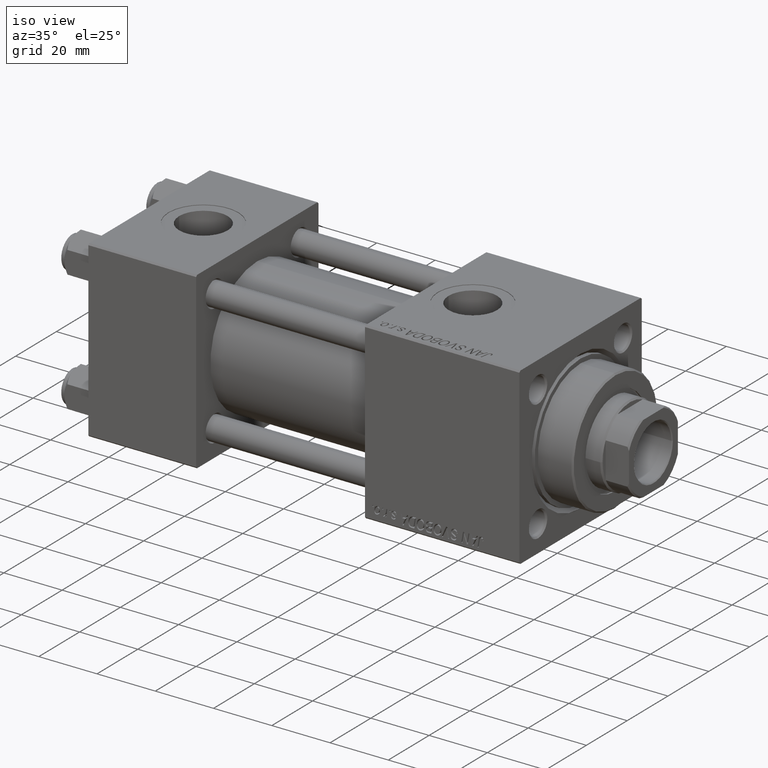
[diagram: clean part render]
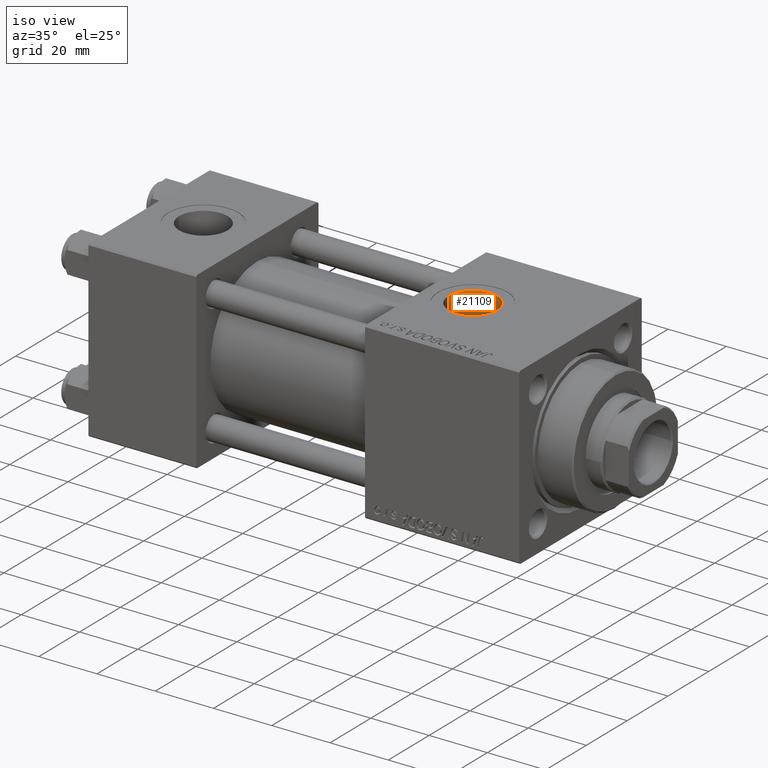
[diagram: same view with one face highlighted and labeled with its STEP entity id]
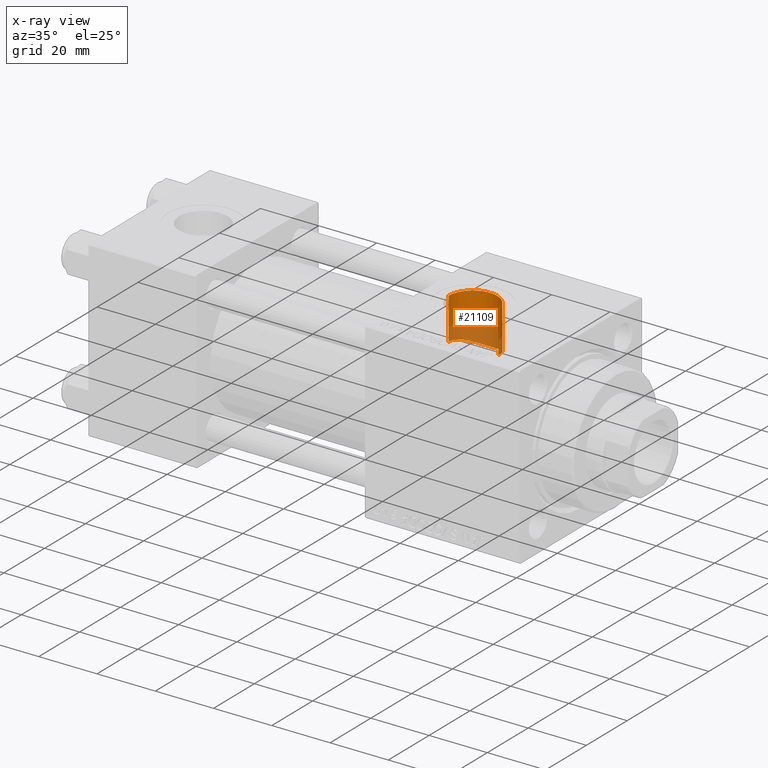
[diagram: x-ray of the same camera — body ghosted, the highlighted face saturated]
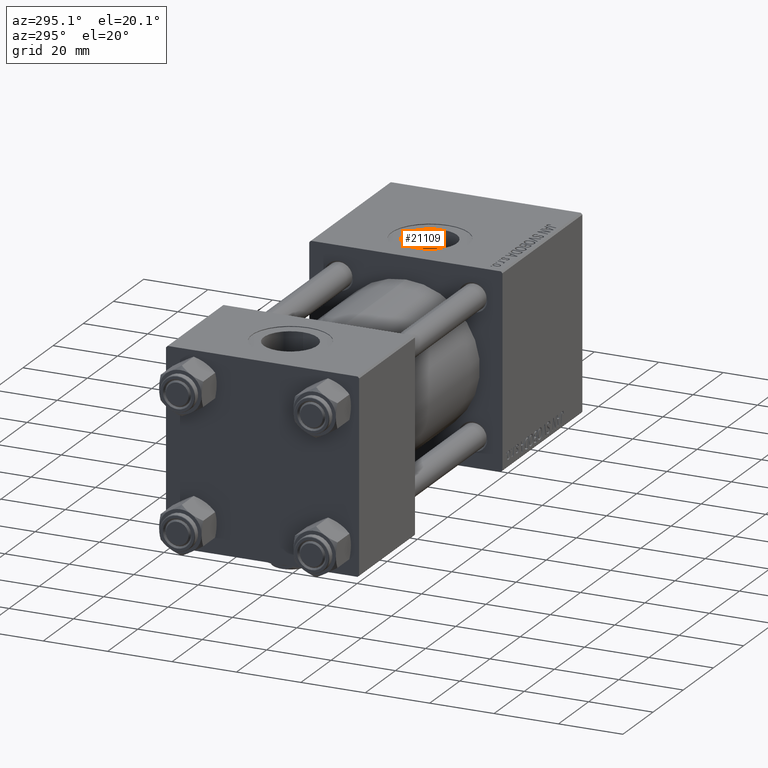
[diagram: same view with one face highlighted and labeled with its STEP entity id]
A machine part, iso view. The second image highlights one B-rep face of the part: STEP entity #21109.
The next image is the same camera in x-ray: the body ghosted, the highlighted face saturated — about 38% of this face is hidden behind the body in this view.
A second angle (auxiliary view) of the same face is appended — the face is thin or edge-on in the first view.
In plain terms, the highlighted cylindrical surface (edge-blend (fillet) strip) has radius 8.33 mm, axis along (0, 0, -1).
Its self-contained STEP definition (entity closure, byte-faithful):
#110 = CARTESIAN_POINT ( 'NONE',  ( 111.0000000000000000, -3.469446951953613794E-15, 52.79999999999999716 ) ) ;
#724 = CARTESIAN_POINT ( 'NONE',  ( 103.0866881673992452, 2.655374492085107896, 15.27912538186901692 ) ) ;
#1174 = EDGE_CURVE ( 'NONE', #15146, #51081, #51486, .T. ) ;
#1497 = CARTESIAN_POINT ( 'NONE',  ( 119.3300000000000125, -2.449316168263869032E-15, 52.79999999999999716 ) ) ;
#1523 = CARTESIAN_POINT ( 'NONE',  ( 116.1213706297519224, 6.590259460215506238, 14.03424939317718945 ) ) ;
#1642 = EDGE_CURVE ( 'NONE', #51081, #8191, #45917, .T. ) ;
#1722 = B_SPLINE_CURVE_WITH_KNOTS ( 'NONE', 3,
 ( #39067, #35874, #52233, #7855 ),
 .UNSPECIFIED., .F., .F.,
 ( 4, 4 ),
 ( 0.000000000000000000, 0.0007063285354565328363 ),
 .UNSPECIFIED. ) ;
#1793 = CARTESIAN_POINT ( 'NONE',  ( 110.3699255016522756, 8.310562936261201017, 13.08375847227048894 ) ) ;
#3381 = AXIS2_PLACEMENT_3D ( 'NONE', #29401, #21465, #4819 ) ;
#4127 = VERTEX_POINT ( 'NONE', #45276 ) ;
#4705 = CARTESIAN_POINT ( 'NONE',  ( 102.7353150131715722, 1.075514947314766045, 15.46498077916762526 ) ) ;
#4819 = DIRECTION ( 'NONE',  ( 1.000000000000000000, 0.000000000000000000, 0.000000000000000000 ) ) ;
#4967 = CARTESIAN_POINT ( 'NONE',  ( 118.8491620312711774, 2.801948762054946140, 15.24674929831635595 ) ) ;
#5083 = VECTOR ( 'NONE', #37458, 1000.000000000000000 ) ;
#5232 = CARTESIAN_POINT ( 'NONE',  ( 104.6351521567280258, 5.399275359235570448, 14.53490046566675176 ) ) ;
#5466 = ORIENTED_EDGE ( 'NONE', *, *, #21217, .F. ) ;
#5494 = CARTESIAN_POINT ( 'NONE',  ( 107.3002806938656590, 7.468012193495477291, 13.58288275005221379 ) ) ;
#5569 = CARTESIAN_POINT ( 'NONE',  ( 119.3300000000000125, -2.449316168263869821E-15, 29.79999999999999716 ) ) ;
#5760 = CARTESIAN_POINT ( 'NONE',  ( 114.3094557415239905, 7.648942304453065333, 13.48185071310164318 ) ) ;
#6238 = DIRECTION ( 'NONE',  ( 0.000000000000000000, 0.000000000000000000, -1.000000000000000000 ) ) ;
#7022 = DIRECTION ( 'NONE',  ( 0.000000000000000000, 0.000000000000000000, -1.000000000000000000 ) ) ;
#7855 = CARTESIAN_POINT ( 'NONE',  ( 119.3300000000000125, 2.755455270027974659E-15, 22.50000000000000355 ) ) ;
#8191 = VERTEX_POINT ( 'NONE', #33394 ) ;
#8943 = CARTESIAN_POINT ( 'NONE',  ( 118.1821809494404505, 4.252752687106064577, 14.91311828418762353 ) ) ;
#9479 = CARTESIAN_POINT ( 'NONE',  ( 111.1827731937053017, 8.345639263937126628, 13.06143459154865738 ) ) ;
#9996 = CARTESIAN_POINT ( 'NONE',  ( 109.2976579557378756, 8.158530844714539043, 13.17929287996980747 ) ) ;
#12324 = VERTEX_POINT ( 'NONE', #14000 ) ;
#12540 = VERTEX_POINT ( 'NONE', #49894 ) ;
#12892 = CARTESIAN_POINT ( 'NONE',  ( 117.9017814515972162, 4.693120186998884336, 14.77885283960395668 ) ) ;
#13155 = CARTESIAN_POINT ( 'NONE',  ( 113.5653903393932751, 7.929573453247051873, 13.31850891624571531 ) ) ;
#13315 = DIRECTION ( 'NONE',  ( 0.000000000000000000, 0.000000000000000000, -1.000000000000000000 ) ) ;
#13420 = CARTESIAN_POINT ( 'NONE',  ( 113.3101403164750565, 8.007790053772854577, 13.27144766602746984 ) ) ;
#14000 = CARTESIAN_POINT ( 'NONE',  ( 119.2999999999999829, 0.7063285354565354002, 22.48891060056044466 ) ) ;
#14907 = EDGE_CURVE ( 'NONE', #15146, #4127, #42459, .T. ) ;
#15129 = EDGE_LOOP ( 'NONE', ( #19742, #41469, #52078, #46730, #5466, #49853 ) ) ;
#15146 = VERTEX_POINT ( 'NONE', #28384 ) ;
#16756 = VECTOR ( 'NONE', #6238, 1000.000000000000000 ) ;
#16856 = CARTESIAN_POINT ( 'NONE',  ( 106.6103928475615135, 7.084409057837727453, 13.78705986442867193 ) ) ;
#17116 = CARTESIAN_POINT ( 'NONE',  ( 119.2535736795805832, 1.251879847823938130, 15.45901168942802251 ) ) ;
#17371 = CARTESIAN_POINT ( 'NONE',  ( 109.5605833038424208, 8.209149030831014215, 13.14769526555237533 ) ) ;
#19676 = FACE_OUTER_BOUND ( 'NONE', #15129, .T. ) ;
#19742 = ORIENTED_EDGE ( 'NONE', *, *, #1642, .F. ) ;
#19933 = CYLINDRICAL_SURFACE ( 'NONE', #25292, 8.330000000000003624 ) ;
#20829 = CARTESIAN_POINT ( 'NONE',  ( 102.7748422588737611, 1.345113678925240475, 15.44384467796440497 ) ) ;
#21091 = CARTESIAN_POINT ( 'NONE',  ( 105.7567134674390417, 6.493535737546835662, 14.07819411470011239 ) ) ;
#21109 = ADVANCED_FACE ( 'NONE', ( #19676 ), #19933, .F. ) ;
#21217 = EDGE_CURVE ( 'NONE', #12324, #12540, #29441, .T. ) ;
#21353 = CARTESIAN_POINT ( 'NONE',  ( 108.0235363201844763, 7.798107477347327787, 13.39787891672378706 ) ) ;
#21465 = DIRECTION ( 'NONE',  ( -0.000000000000000000, -0.000000000000000000, -1.000000000000000000 ) ) ;
#21880 = CARTESIAN_POINT ( 'NONE',  ( 115.0228866172804487, 7.298933092229524355, 13.67473780800534833 ) ) ;
#23647 = DIRECTION ( 'NONE',  ( -1.000000000000000000, 0.000000000000000000, 0.000000000000000000 ) ) ;
#25055 = CARTESIAN_POINT ( 'NONE',  ( 118.6535066739793223, 3.299105492354561520, 15.14695296028899207 ) ) ;
#25292 = AXIS2_PLACEMENT_3D ( 'NONE', #110, #7022, #23647 ) ;
#25317 = CARTESIAN_POINT ( 'NONE',  ( 103.4884433949717391, 3.639785051710008545, 15.07496769168805351 ) ) ;
#25843 = CARTESIAN_POINT ( 'NONE',  ( 106.3914020546078660, 6.943847275614624337, 13.85860288735603696 ) ) ;
#26112 = CARTESIAN_POINT ( 'NONE',  ( 114.7878989153694107, 7.423653917640651301, 13.60720322249615144 ) ) ;
#28384 = CARTESIAN_POINT ( 'NONE',  ( 102.6700000000000017, -3.469446951953613794E-15, 29.79999999999999716 ) ) ;
#28651 = CARTESIAN_POINT ( 'NONE',  ( 119.2999999999999829, 0.7063285354565354002, 52.79999999999999716 ) ) ;
#28760 = CARTESIAN_POINT ( 'NONE',  ( 102.6700000000000443, 0.2692781161559564818, 15.50000000000000355 ) ) ;
#29020 = CARTESIAN_POINT ( 'NONE',  ( 104.3108638884341701, 4.991865470557804052, 14.68134318030003804 ) ) ;
#29401 = CARTESIAN_POINT ( 'NONE',  ( 111.0000000000000000, -3.469446951953613794E-15, 29.79999999999999716 ) ) ;
#29441 = LINE ( 'NONE', #28651, #34592 ) ;
#29551 = CARTESIAN_POINT ( 'NONE',  ( 119.2999999999999829, 0.7063285354565354002, 15.48389808801387701 ) ) ;
#29814 = CARTESIAN_POINT ( 'NONE',  ( 110.0961245563538711, 8.285231283310348971, 13.09988401430628535 ) ) ;
#32998 = CARTESIAN_POINT ( 'NONE',  ( 107.0641356425913244, 7.346187746824329956, 13.64937350183227771 ) ) ;
#33394 = CARTESIAN_POINT ( 'NONE',  ( 119.3300000000000125, 2.755455270027974659E-15, 22.50000000000000355 ) ) ;
#33521 = CARTESIAN_POINT ( 'NONE',  ( 111.7204179385424112, 8.316316922132150680, 13.08044599360020044 ) ) ;
#33789 = CARTESIAN_POINT ( 'NONE',  ( 117.2636960965467665, 5.515983638965261449, 14.49185263653180478 ) ) ;
#34539 = B_SPLINE_CURVE_WITH_KNOTS ( 'NONE', 3,
 ( #48848, #28760, #40921, #4705, #20829, #51771, #724, #25317, #49112, #29020, #5232, #41448, #21091, #25843, #16856, #32998, #5494, #21353, #45149, #9996, #17371, #29814, #1793, #9479, #33521, #36957, #38019, #13420, #13155, #49631, #5760, #26112, #21880, #42243, #1523, #37486, #33789, #12892, #8943, #41184, #25055, #4967, #49901, #37228, #17116, #29551 ),
 .UNSPECIFIED., .F., .F.,
 ( 4, 2, 2, 2, 2, 2, 2, 2, 2, 2, 2, 2, 2, 2, 2, 2, 2, 2, 2, 2, 2, 2, 4 ),
 ( 0.02586561750490627698, 0.02667257115183745836, 0.02747952479876863974, 0.02909343209263099903, 0.03070733938649336178, 0.03232124668035572107, 0.03393515397421808383, 0.03474210762114926521, 0.03554906126808044659, 0.03716296856194277465, 0.03796992220887392133, 0.03877687585580506108, 0.04039078314966738914, 0.04119773679659853582, 0.04200469044352968251, 0.04281164409046082225, 0.04361859773739196200, 0.04523250503125424843, 0.04684641232511653486, 0.04846031961897881435, 0.04926727326590996797, 0.05007422691284112160, 0.05168813420670342190 ),
 .UNSPECIFIED. ) ;
#34592 = VECTOR ( 'NONE', #13315, 1000.000000000000000 ) ;
#35874 = CARTESIAN_POINT ( 'NONE',  ( 119.3200361445783102, 0.4708856903043578401, 22.49630535626710781 ) ) ;
#36957 = CARTESIAN_POINT ( 'NONE',  ( 112.5206788388489372, 8.194464177599160237, 13.15686343614056142 ) ) ;
#37228 = CARTESIAN_POINT ( 'NONE',  ( 119.1550002228559748, 1.780279521111761465, 15.40614980614642171 ) ) ;
#37458 = DIRECTION ( 'NONE',  ( 0.000000000000000000, 0.000000000000000000, -1.000000000000000000 ) ) ;
#37486 = CARTESIAN_POINT ( 'NONE',  ( 116.9021014551140070, 5.901284207169342544, 14.33759116759393493 ) ) ;
#38019 = CARTESIAN_POINT ( 'NONE',  ( 112.7879913300364905, 8.140303239488138942, 13.19058330274246593 ) ) ;
#38420 = EDGE_CURVE ( 'NONE', #4127, #12540, #34539, .T. ) ;
#39067 = CARTESIAN_POINT ( 'NONE',  ( 119.2999999999999829, 0.7063285354565354002, 22.48891060056044466 ) ) ;
#40628 = EDGE_CURVE ( 'NONE', #12324, #8191, #1722, .T. ) ;
#40921 = CARTESIAN_POINT ( 'NONE',  ( 102.6830263376666181, 0.5382373393380799342, 15.49298755787481774 ) ) ;
#41184 = CARTESIAN_POINT ( 'NONE',  ( 118.5428870207784797, 3.544564506934533732, 15.09123298641117650 ) ) ;
#41448 = CARTESIAN_POINT ( 'NONE',  ( 105.3619139893283432, 6.154303259437297058, 14.23165687271048085 ) ) ;
#41469 = ORIENTED_EDGE ( 'NONE', *, *, #1174, .F. ) ;
#42243 = CARTESIAN_POINT ( 'NONE',  ( 115.7013846757648139, 6.896553212426753454, 13.88449017423048204 ) ) ;
#42459 = LINE ( 'NONE', #50373, #16756 ) ;
#45149 = CARTESIAN_POINT ( 'NONE',  ( 108.5224199253087818, 7.970776178815810020, 13.29429473676388973 ) ) ;
#45276 = CARTESIAN_POINT ( 'NONE',  ( 102.6700000000000017, 1.898304232322969090E-15, 15.50000000000000000 ) ) ;
#45917 = LINE ( 'NONE', #1497, #5083 ) ;
#46730 = ORIENTED_EDGE ( 'NONE', *, *, #38420, .T. ) ;
#48848 = CARTESIAN_POINT ( 'NONE',  ( 102.6700000000000017, 1.898304232322969090E-15, 15.50000000000000000 ) ) ;
#49112 = CARTESIAN_POINT ( 'NONE',  ( 103.7382412053277676, 4.114622947877689896, 14.95093430025990600 ) ) ;
#49631 = CARTESIAN_POINT ( 'NONE',  ( 114.0650487448087489, 7.750150897617362311, 13.42370947118261171 ) ) ;
#49853 = ORIENTED_EDGE ( 'NONE', *, *, #40628, .T. ) ;
#49894 = CARTESIAN_POINT ( 'NONE',  ( 119.2999999999999829, 0.7063285354565354002, 15.48389808801387701 ) ) ;
#49901 = CARTESIAN_POINT ( 'NONE',  ( 118.9347458643765805, 2.549478185781639983, 15.29108801674696139 ) ) ;
#50373 = CARTESIAN_POINT ( 'NONE',  ( 102.6700000000000017, -3.469446951953613794E-15, 52.79999999999999716 ) ) ;
#51081 = VERTEX_POINT ( 'NONE', #5569 ) ;
#51486 = CIRCLE ( 'NONE', #3381, 8.330000000000003624 ) ;
#51771 = CARTESIAN_POINT ( 'NONE',  ( 102.9323351773737869, 2.143895289495521883, 15.36035123208332109 ) ) ;
#52078 = ORIENTED_EDGE ( 'NONE', *, *, #14907, .T. ) ;
#52233 = CARTESIAN_POINT ( 'NONE',  ( 119.3300000000000125, 0.2354428451521802246, 22.50000000000000355 ) ) ;